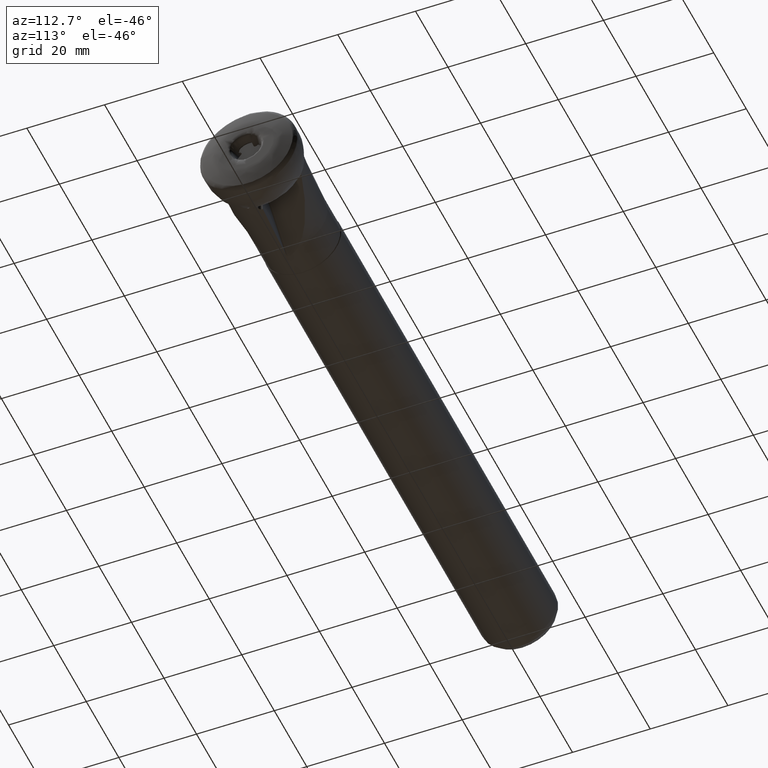
[diagram: clean part render]
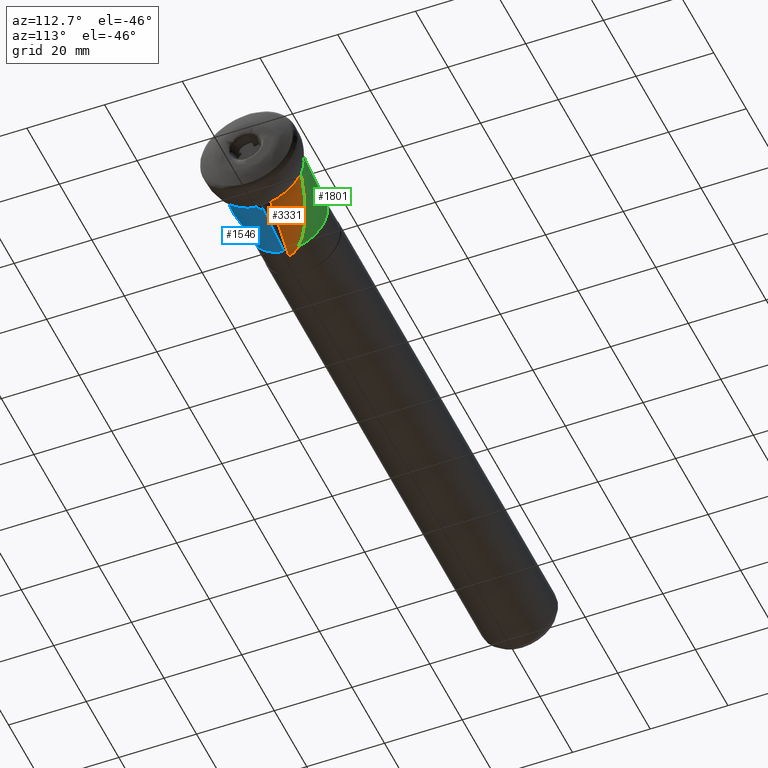
[diagram: same view with three faces highlighted in distinct colors, each labeled with its STEP entity id]
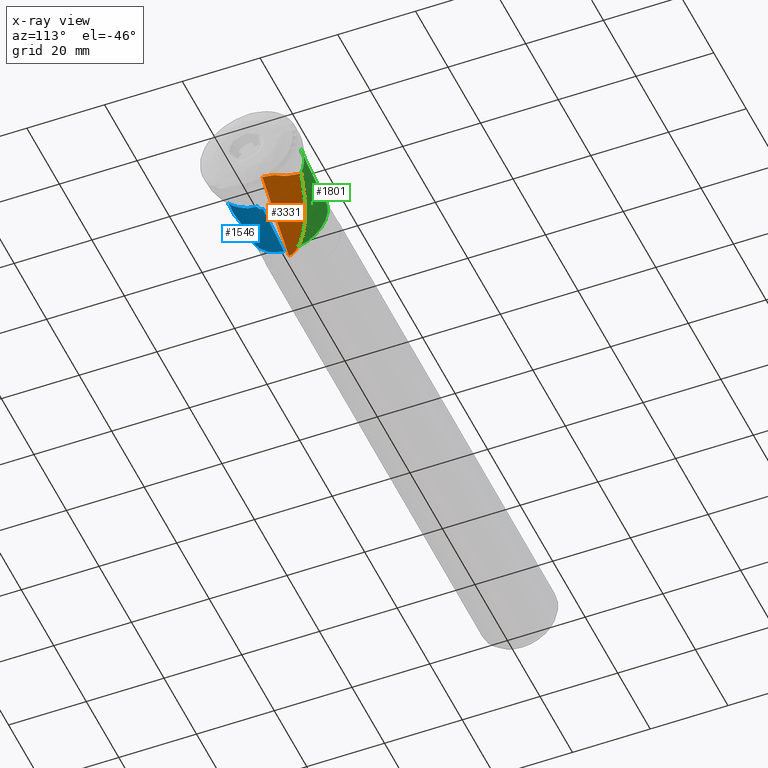
[diagram: x-ray of the same camera — body ghosted, the three highlighted faces saturated]
A machine part, auxiliary view with three faces highlighted in distinct colors.
The next image is the same camera in x-ray (body ghosted, the three faces saturated) — at least one of them is partly hidden behind the body in this view.
Their STEP definitions:

[orange] entity #3331 — the highlighted planar face has unit normal (-0.3701, 0.1482, 0.9171).
#44 = EDGE_LOOP ( 'NONE', ( #835, #937, #669, #2847, #942 ) ) ;
#162 = EDGE_CURVE ( 'NONE', #2925, #3113, #2258, .T. ) ;
#224 = CARTESIAN_POINT ( 'NONE',  ( -8.811733367181172800, 9.638300513810175800, -3.968912878629527400 ) ) ;
#241 = CARTESIAN_POINT ( 'NONE',  ( -8.546745980041865900, 5.434749106989636800, -3.182726212363853800 ) ) ;
#291 = CARTESIAN_POINT ( 'NONE',  ( -27.61564122826637700, -0.8415957483774254600, -9.864163248664985100 ) ) ;
#307 = CARTESIAN_POINT ( 'NONE',  ( -27.41783301019367500, 0.2050711477676617800, -9.953463312700556300 ) ) ;
#311 = FACE_OUTER_BOUND ( 'NONE', #44, .T. ) ;
#319 =( BOUNDED_CURVE ( )  B_SPLINE_CURVE ( 3, ( #1721, #1427, #2346, #509 ),
 .UNSPECIFIED., .F., .T. ) 
 B_SPLINE_CURVE_WITH_KNOTS ( ( 4, 4 ),
 ( 3.477441010317362300, 4.344822891366477300 ),
 .UNSPECIFIED. ) 
 CURVE ( )  GEOMETRIC_REPRESENTATION_ITEM ( )  RATIONAL_B_SPLINE_CURVE ( ( 1.000000000000000000, 0.9382806109319690200, 0.9382806109319690200, 1.000000000000000000 ) ) 
 REPRESENTATION_ITEM ( '' )  );
#408 = EDGE_CURVE ( 'NONE', #996, #2798, #1837, .T. ) ;
#436 = CARTESIAN_POINT ( 'NONE',  ( -8.008849885953161200, -0.05881239081814140800, -2.077951055465177900 ) ) ;
#509 = CARTESIAN_POINT ( 'NONE',  ( -8.740307214642635700, 10.19924558084852100, -4.030729780855216000 ) ) ;
#512 = CARTESIAN_POINT ( 'NONE',  ( -8.813978384456755000, 9.069975647979582300, -3.877984095944320600 ) ) ;
#529 = CARTESIAN_POINT ( 'NONE',  ( -8.323145797366366900, 4.630326586293118200, -2.962502534939251300 ) ) ;
#600 = AXIS2_PLACEMENT_3D ( 'NONE', #436, #3770, #3192 ) ;
#669 = ORIENTED_EDGE ( 'NONE', *, *, #692, .T. ) ;
#692 = EDGE_CURVE ( 'NONE', #2798, #3881, #2011, .T. ) ;
#814 = CARTESIAN_POINT ( 'NONE',  ( -8.817044482518666000, 8.217526212496588700, -3.741475393129663800 ) ) ;
#828 = CARTESIAN_POINT ( 'NONE',  ( -8.104467768745150700, 3.824342027265665900, -2.744012880736104200 ) ) ;
#835 = ORIENTED_EDGE ( 'NONE', *, *, #2711, .T. ) ;
#841 = CARTESIAN_POINT ( 'NONE',  ( -8.029264572803558800, 3.556606597131828800, -2.670400186422236200 ) ) ;
#937 = ORIENTED_EDGE ( 'NONE', *, *, #408, .T. ) ;
#942 = ORIENTED_EDGE ( 'NONE', *, *, #162, .T. ) ;
#996 = VERTEX_POINT ( 'NONE', #1839 ) ;
#1056 = PLANE ( 'NONE',  #600 ) ;
#1086 = DIRECTION ( 'NONE',  ( -0.9289711258367762100, -0.06495998921732398800, -0.3644075289595942700 ) ) ;
#1122 = CARTESIAN_POINT ( 'NONE',  ( -8.788676563803845100, 10.06282961495482200, -4.028206909125269200 ) ) ;
#1137 = CARTESIAN_POINT ( 'NONE',  ( -8.815157257560034800, 7.507821095023889900, -3.626033531083602000 ) ) ;
#1427 = CARTESIAN_POINT ( 'NONE',  ( -22.92936467704583600, 5.651757606189038400, -9.022177117900037400 ) ) ;
#1432 = CARTESIAN_POINT ( 'NONE',  ( -8.740307214642635700, 10.19924558084852100, -4.030729780855216000 ) ) ;
#1440 = LINE ( 'NONE', #3220, #2149 ) ;
#1445 = CARTESIAN_POINT ( 'NONE',  ( -8.809498372254063600, 7.082963518329946400, -3.555097649412223900 ) ) ;
#1721 = CARTESIAN_POINT ( 'NONE',  ( -25.80000000000000400, 2.275068941804797400, -9.635043399488926900 ) ) ;
#1726 = CARTESIAN_POINT ( 'NONE',  ( -8.809339598818191100, 9.922526779671802200, -4.013874543120897100 ) ) ;
#1738 = CARTESIAN_POINT ( 'NONE',  ( -8.770016744952450000, 6.523298656682144700, -3.448728627470818900 ) ) ;
#1837 = B_SPLINE_CURVE_WITH_KNOTS ( 'NONE', 3,
 ( #1432, #3255, #1122, #3552, #1726, #3844, #2031, #224, #2353, #512, #2655, #814, #2962, #1137, #3269, #1445, #3567, #1738, #3857, #2047, #241, #2365, #529, #2671, #828, #2976 ),
 .UNSPECIFIED., .F., .F.,
 ( 4, 2, 2, 2, 2, 2, 2, 2, 2, 2, 2, 2, 4 ),
 ( 0.0002380341816070862500, 0.0004521427388591783200, 0.0005591970174852218100, 0.0006662512961112652600, 0.001094468410615454500, 0.001950902639623837900, 0.002807336868632221400, 0.003235553983136413400, 0.003663771097640604900, 0.004520205326648990200, 0.005376639555657375900, 0.006233073784665761600, 0.007089508013674147300 ),
 .UNSPECIFIED. ) ;
#1839 = CARTESIAN_POINT ( 'NONE',  ( -8.740307214642635700, 10.19924558084852100, -4.030729780855216000 ) ) ;
#2011 = LINE ( 'NONE', #3662, #2123 ) ;
#2031 = CARTESIAN_POINT ( 'NONE',  ( -8.810308752599869600, 9.815943835221759200, -3.997043078239952400 ) ) ;
#2047 = CARTESIAN_POINT ( 'NONE',  ( -8.622455237586764900, 5.702643708550965600, -3.256568857939355700 ) ) ;
#2054 = CARTESIAN_POINT ( 'NONE',  ( -25.80000000000000400, 2.275068941804797400, -9.635043399488926900 ) ) ;
#2057 = CARTESIAN_POINT ( 'NONE',  ( -8.012170204761533300, 0.5292124833229265900, -2.174309133692659700 ) ) ;
#2123 = VECTOR ( 'NONE', #2478, 999.9999999999998900 ) ;
#2149 = VECTOR ( 'NONE', #1086, 1000.000000000000200 ) ;
#2258 =( BOUNDED_CURVE ( )  B_SPLINE_CURVE ( 3, ( #291, #307, #2431, #2054 ),
 .UNSPECIFIED., .F., .F. ) 
 B_SPLINE_CURVE_WITH_KNOTS ( ( 4, 4 ),
 ( 3.216684054430979200, 3.533673707329590300 ),
 .UNSPECIFIED. ) 
 CURVE ( )  GEOMETRIC_REPRESENTATION_ITEM ( )  RATIONAL_B_SPLINE_CURVE ( ( 1.000000000000000000, 0.9916439776872796300, 0.9916439776872796300, 1.000000000000000000 ) ) 
 REPRESENTATION_ITEM ( '' )  );
#2346 = CARTESIAN_POINT ( 'NONE',  ( -16.86874251824680100, 8.466898601579478300, -7.031190074387513500 ) ) ;
#2353 = CARTESIAN_POINT ( 'NONE',  ( -8.812431589825218100, 9.496211378927460700, -3.946234679656151400 ) ) ;
#2365 = CARTESIAN_POINT ( 'NONE',  ( -8.397478103477899600, 4.898501181884717500, -3.035834728884848400 ) ) ;
#2431 = CARTESIAN_POINT ( 'NONE',  ( -26.80751947391128100, 1.252713500705300500, -9.876446475229506900 ) ) ;
#2449 = CARTESIAN_POINT ( 'NONE',  ( -27.61564122826637700, -0.8415957483774254600, -9.864163248664985100 ) ) ;
#2478 = DIRECTION ( 'NONE',  ( 0.005572156574991135400, -0.9868229100296731500, 0.1617080558032638600 ) ) ;
#2655 = CARTESIAN_POINT ( 'NONE',  ( -8.816588011951838100, 8.785709699288375400, -3.833103133301883700 ) ) ;
#2671 = CARTESIAN_POINT ( 'NONE',  ( -8.175751805054536800, 4.093648312949667900, -2.816297754448489500 ) ) ;
#2711 = EDGE_CURVE ( 'NONE', #3113, #996, #319, .T. ) ;
#2798 = VERTEX_POINT ( 'NONE', #841 ) ;
#2847 = ORIENTED_EDGE ( 'NONE', *, *, #3768, .T. ) ;
#2925 = VERTEX_POINT ( 'NONE', #2449 ) ;
#2962 = CARTESIAN_POINT ( 'NONE',  ( -8.816068266577241600, 7.933691373385979500, -3.695216956180586100 ) ) ;
#2976 = CARTESIAN_POINT ( 'NONE',  ( -8.029264572803558800, 3.556606597131828800, -2.670400186422236200 ) ) ;
#3113 = VERTEX_POINT ( 'NONE', #3735 ) ;
#3192 = DIRECTION ( 'NONE',  ( 0.9273309213448913700, 0.0000000000000000000, 0.3742423844484142300 ) ) ;
#3220 = CARTESIAN_POINT ( 'NONE',  ( -27.68627112306956000, -0.8465346717489176100, -9.891869239432693900 ) ) ;
#3255 = CARTESIAN_POINT ( 'NONE',  ( -8.767765564405454600, 10.13305542909570900, -4.031115558581851700 ) ) ;
#3269 = CARTESIAN_POINT ( 'NONE',  ( -8.815949033665814800, 7.365630681679268900, -3.603376721982814800 ) ) ;
#3331 = ADVANCED_FACE ( 'Fl�che11', ( #311 ), #1056, .F. ) ;
#3552 = CARTESIAN_POINT ( 'NONE',  ( -8.808420984884493900, 9.957998512210233200, -4.019235645219522400 ) ) ;
#3567 = CARTESIAN_POINT ( 'NONE',  ( -8.802533576599787000, 6.942427548505498300, -3.529577864456803700 ) ) ;
#3662 = CARTESIAN_POINT ( 'NONE',  ( -8.008849885953161200, -0.05881239081814138000, -2.077951055465177400 ) ) ;
#3735 = CARTESIAN_POINT ( 'NONE',  ( -25.80000000000000400, 2.275068941804797400, -9.635043399488926900 ) ) ;
#3768 = EDGE_CURVE ( 'NONE', #3881, #2925, #1440, .T. ) ;
#3770 = DIRECTION ( 'NONE',  ( -0.3701102517259635100, 0.1481915788479658300, 0.9170919569628179800 ) ) ;
#3844 = CARTESIAN_POINT ( 'NONE',  ( -8.810000944499375200, 9.851473669820702400, -4.002660071511732200 ) ) ;
#3857 = CARTESIAN_POINT ( 'NONE',  ( -8.731957091854221500, 6.247373555817695500, -3.388782573302222100 ) ) ;
#3881 = VERTEX_POINT ( 'NONE', #2057 ) ;

[blue] entity #1546 — the highlighted conical surface has half-angle 3.578 deg.
#48 = CARTESIAN_POINT ( 'NONE',  ( -22.92936467704580400, -10.63931338463860300, -0.3834771040417172000 ) ) ;
#89 = CARTESIAN_POINT ( 'NONE',  ( -8.740307214642635700, -4.070214671424037300, -10.18355269605140000 ) ) ;
#92 = CARTESIAN_POINT ( 'NONE',  ( -8.865150662808204600, -1.121132672289459900, -10.90153055876566400 ) ) ;
#110 = EDGE_CURVE ( 'NONE', #2043, #612, #1282, .T. ) ;
#142 = VERTEX_POINT ( 'NONE', #2656 ) ;
#173 = CARTESIAN_POINT ( 'NONE',  ( -20.80416452360377400, -0.9535479512429421200, -10.17542746316643400 ) ) ;
#206 = CARTESIAN_POINT ( 'NONE',  ( -8.740307214647399900, -3.126590691940572600, -10.51169936925366800 ) ) ;
#270 = DIRECTION ( 'NONE',  ( 1.000000000000000000, 1.223799707454890500E-016, -0.0000000000000000000 ) ) ;
#364 = CARTESIAN_POINT ( 'NONE',  ( -9.844594368013705600, -0.7924712564561831000, -10.86932712811296400 ) ) ;
#396 = CARTESIAN_POINT ( 'NONE',  ( -9.114387545319235800, -1.138561012902187000, -10.88404890862997800 ) ) ;
#413 = CARTESIAN_POINT ( 'NONE',  ( -25.80000000000000100, 0.0000000000000000000, 0.0000000000000000000 ) ) ;
#602 = ORIENTED_EDGE ( 'NONE', *, *, #3121, .T. ) ;
#612 = VERTEX_POINT ( 'NONE', #2757 ) ;
#654 = CARTESIAN_POINT ( 'NONE',  ( -9.539305823287822500, -1.081162544901735900, -10.86404855966746100 ) ) ;
#660 =( BOUNDED_CURVE ( )  B_SPLINE_CURVE ( 3, ( #1674, #1973, #173, #2301 ),
 .UNSPECIFIED., .F., .T. ) 
 B_SPLINE_CURVE_WITH_KNOTS ( ( 4, 4 ),
 ( 2.685700531748277600, 2.733482246654129500 ),
 .UNSPECIFIED. ) 
 CURVE ( )  GEOMETRIC_REPRESENTATION_ITEM ( )  RATIONAL_B_SPLINE_CURVE ( ( 1.000000000000000000, 0.9998097513593796600, 0.9998097513593796600, 1.000000000000000000 ) ) 
 REPRESENTATION_ITEM ( '' )  );
#704 = DIRECTION ( 'NONE',  ( 0.0000000000000000000, 0.0000000000000000000, -1.000000000000000000 ) ) ;
#729 = CARTESIAN_POINT ( 'NONE',  ( -25.79999999999996900, -1.302890799101552400, -9.813891968307563800 ) ) ;
#734 = VERTEX_POINT ( 'NONE', #955 ) ;
#755 = CARTESIAN_POINT ( 'NONE',  ( -8.740307214642635700, -2.498948196336651500E-015, 0.0000000000000000000 ) ) ;
#778 = EDGE_CURVE ( 'NONE', #2693, #612, #3824, .T. ) ;
#851 = DIRECTION ( 'NONE',  ( 0.0000000000000000000, 0.0000000000000000000, -1.000000000000000000 ) ) ;
#881 = DIRECTION ( 'NONE',  ( -1.581790945875564300E-016, 1.000000000000000000, 0.0000000000000000000 ) ) ;
#897 = ORIENTED_EDGE ( 'NONE', *, *, #1247, .F. ) ;
#941 = CARTESIAN_POINT ( 'NONE',  ( -25.79999999999999700, -9.481726821425414900, 2.847254200780436700 ) ) ;
#954 = CARTESIAN_POINT ( 'NONE',  ( -9.969197477330617100, -0.5027476664598041800, -10.87888656146969500 ) ) ;
#955 = CARTESIAN_POINT ( 'NONE',  ( -8.740307214642610800, -1.112402767967204800, -10.91026823989949100 ) ) ;
#967 = CARTESIAN_POINT ( 'NONE',  ( -9.114387545319235800, -1.138561012902187000, -10.88404890862997800 ) ) ;
#1033 = CARTESIAN_POINT ( 'NONE',  ( -9.986957464007824500, -0.2639710184723470500, -10.88587501733269600 ) ) ;
#1071 = DIRECTION ( 'NONE',  ( -1.581790945875564300E-016, 1.000000000000000000, 0.0000000000000000000 ) ) ;
#1106 = EDGE_LOOP ( 'NONE', ( #1327, #2657, #602, #3511, #2091, #2837, #1355, #897, #3282 ) ) ;
#1126 = FACE_OUTER_BOUND ( 'NONE', #1106, .T. ) ;
#1149 = CARTESIAN_POINT ( 'NONE',  ( -8.740307214642641000, -8.590337176435289400, -6.817440882023453800 ) ) ;
#1157 = VERTEX_POINT ( 'NONE', #3429 ) ;
#1247 = EDGE_CURVE ( 'NONE', #2693, #734, #3329, .T. ) ;
#1248 = AXIS2_PLACEMENT_3D ( 'NONE', #2000, #270, #881 ) ;
#1271 = CARTESIAN_POINT ( 'NONE',  ( -9.977108450534821300, -0.3969348169359874200, -10.88225108756960300 ) ) ;
#1281 =( BOUNDED_CURVE ( )  B_SPLINE_CURVE ( 3, ( #941, #48, #3392, #1570 ),
 .UNSPECIFIED., .F., .F. ) 
 B_SPLINE_CURVE_WITH_KNOTS ( ( 4, 4 ),
 ( 3.477441010317362700, 4.344822891366477300 ),
 .UNSPECIFIED. ) 
 CURVE ( )  GEOMETRIC_REPRESENTATION_ITEM ( )  RATIONAL_B_SPLINE_CURVE ( ( 1.000000000000000000, 0.9382806109319690200, 0.9382806109319690200, 1.000000000000000000 ) ) 
 REPRESENTATION_ITEM ( '' )  );
#1282 = CIRCLE ( 'NONE', #1248, 10.96683149249277300 ) ;
#1304 = EDGE_CURVE ( 'NONE', #1157, #3666, #660, .T. ) ;
#1308 = CARTESIAN_POINT ( 'NONE',  ( -9.114387545319235800, -1.138561012902187000, -10.88404890862997800 ) ) ;
#1327 = ORIENTED_EDGE ( 'NONE', *, *, #110, .F. ) ;
#1355 = ORIENTED_EDGE ( 'NONE', *, *, #1692, .F. ) ;
#1546 = ADVANCED_FACE ( 'NONE', ( #1126 ), #1836, .T. ) ;
#1570 = CARTESIAN_POINT ( 'NONE',  ( -8.740307214642641000, -8.590337176435289400, -6.817440882023453800 ) ) ;
#1594 = CARTESIAN_POINT ( 'NONE',  ( -8.913199544597658200, -3.428929173434154700, -10.40715190376007400 ) ) ;
#1624 = CARTESIAN_POINT ( 'NONE',  ( -9.977108450534821300, -0.3969348169359874200, -10.88225108756960300 ) ) ;
#1674 = CARTESIAN_POINT ( 'NONE',  ( -9.991745607475124300, -0.1974699670405081500, -10.88678177030139300 ) ) ;
#1692 = EDGE_CURVE ( 'NONE', #734, #3054, #3071, .T. ) ;
#1712 = CARTESIAN_POINT ( 'NONE',  ( -9.977108450534821300, -0.3969348169359874200, -10.88225108756960300 ) ) ;
#1836 = CONICAL_SURFACE ( 'NONE', #3108, 11.01000000000000000, 0.06245388417783789100 ) ;
#1897 = CARTESIAN_POINT ( 'NONE',  ( -8.847885205989136600, -3.935277805782304600, -10.23024009740220900 ) ) ;
#1899 = CARTESIAN_POINT ( 'NONE',  ( -8.740307214642610800, -1.112402767967204800, -10.91026823989949100 ) ) ;
#1973 = CARTESIAN_POINT ( 'NONE',  ( -15.53374370236634200, -0.5850042256131817700, -10.53312544871989200 ) ) ;
#1979 = VERTEX_POINT ( 'NONE', #1712 ) ;
#2000 = CARTESIAN_POINT ( 'NONE',  ( -8.740307214642635700, -2.498948196336651500E-015, 0.0000000000000000000 ) ) ;
#2043 = VERTEX_POINT ( 'NONE', #1149 ) ;
#2091 = ORIENTED_EDGE ( 'NONE', *, *, #3203, .F. ) ;
#2112 = CIRCLE ( 'NONE', #2965, 9.899999999999996800 ) ;
#2131 = AXIS2_PLACEMENT_3D ( 'NONE', #755, #2898, #1071 ) ;
#2178 = CARTESIAN_POINT ( 'NONE',  ( -9.940240070436125600, -0.6049602164547354100, -10.87538402791145500 ) ) ;
#2212 = CARTESIAN_POINT ( 'NONE',  ( -8.989844118354666200, -1.129852088106039400, -10.89279078083546900 ) ) ;
#2301 = CARTESIAN_POINT ( 'NONE',  ( -25.79999999999996900, -1.302890799101552400, -9.813891968307563800 ) ) ;
#2487 = EDGE_CURVE ( 'NONE', #1979, #3054, #3116, .T. ) ;
#2497 = CARTESIAN_POINT ( 'NONE',  ( -9.778036252315137800, -0.8766060492534613100, -10.86684936453727200 ) ) ;
#2545 = DIRECTION ( 'NONE',  ( 1.000000000000000000, -0.0000000000000000000, -0.0000000000000000000 ) ) ;
#2656 = CARTESIAN_POINT ( 'NONE',  ( -25.79999999999999700, -9.481726821425414900, 2.847254200780436700 ) ) ;
#2657 = ORIENTED_EDGE ( 'NONE', *, *, #3015, .F. ) ;
#2688 = DIRECTION ( 'NONE',  ( 1.000000000000000000, -0.0000000000000000000, -0.0000000000000000000 ) ) ;
#2693 = VERTEX_POINT ( 'NONE', #206 ) ;
#2757 = CARTESIAN_POINT ( 'NONE',  ( -8.740307214642635700, -4.070214671424037300, -10.18355269605140000 ) ) ;
#2801 = CARTESIAN_POINT ( 'NONE',  ( -9.325643166846514700, -1.153333445020715600, -10.86922058977605900 ) ) ;
#2837 = ORIENTED_EDGE ( 'NONE', *, *, #2487, .T. ) ;
#2898 = DIRECTION ( 'NONE',  ( 1.000000000000000000, 1.223799707454890500E-016, -0.0000000000000000000 ) ) ;
#2965 = AXIS2_PLACEMENT_3D ( 'NONE', #413, #2545, #704 ) ;
#3015 = EDGE_CURVE ( 'NONE', #142, #2043, #1281, .T. ) ;
#3054 = VERTEX_POINT ( 'NONE', #1308 ) ;
#3071 =( BOUNDED_CURVE ( )  B_SPLINE_CURVE ( 3, ( #1899, #92, #2212, #396 ),
 .UNSPECIFIED., .F., .T. ) 
 B_SPLINE_CURVE_WITH_KNOTS ( ( 4, 4 ),
 ( 2.721170287014202500, 2.722244440893388800 ),
 .UNSPECIFIED. ) 
 CURVE ( )  GEOMETRIC_REPRESENTATION_ITEM ( )  RATIONAL_B_SPLINE_CURVE ( ( 1.000000000000000000, 0.9999999038494558100, 0.9999999038494558100, 1.000000000000000000 ) ) 
 REPRESENTATION_ITEM ( '' )  );
#3106 = CARTESIAN_POINT ( 'NONE',  ( -8.853886485836858000, -3.257913264213976800, -10.46522866364550600 ) ) ;
#3108 = AXIS2_PLACEMENT_3D ( 'NONE', #3877, #2688, #851 ) ;
#3116 = B_SPLINE_CURVE_WITH_KNOTS ( 'NONE', 3,
 ( #1271, #954, #2178, #364, #2497, #654, #2801, #967 ),
 .UNSPECIFIED., .F., .F.,
 ( 4, 2, 2, 4 ),
 ( 2.710505431213761100E-018, 0.0003139173445558436400, 0.0006278346891116845600, 0.001255669378223370200 ),
 .UNSPECIFIED. ) ;
#3121 = EDGE_CURVE ( 'NONE', #142, #3666, #2112, .T. ) ;
#3125 = CARTESIAN_POINT ( 'NONE',  ( -8.740307214647399900, -3.126590691940572600, -10.51169936925366800 ) ) ;
#3155 = CARTESIAN_POINT ( 'NONE',  ( -9.982078277733185300, -0.3304611272993766000, -10.88436474828988800 ) ) ;
#3167 = CARTESIAN_POINT ( 'NONE',  ( -9.991745607475124300, -0.1974699670405081500, -10.88678177030139300 ) ) ;
#3203 = EDGE_CURVE ( 'NONE', #1979, #1157, #3761, .T. ) ;
#3282 = ORIENTED_EDGE ( 'NONE', *, *, #778, .T. ) ;
#3329 = CIRCLE ( 'NONE', #2131, 10.96683149249277300 ) ;
#3392 = CARTESIAN_POINT ( 'NONE',  ( -16.86874251824678300, -10.32263852404627100, -3.816954243041101400 ) ) ;
#3429 = CARTESIAN_POINT ( 'NONE',  ( -9.991745607475124300, -0.1974699670405081500, -10.88678177030139300 ) ) ;
#3511 = ORIENTED_EDGE ( 'NONE', *, *, #1304, .F. ) ;
#3666 = VERTEX_POINT ( 'NONE', #729 ) ;
#3712 = CARTESIAN_POINT ( 'NONE',  ( -8.909569674017355100, -3.766931844696869400, -10.28987679569572900 ) ) ;
#3761 =( BOUNDED_CURVE ( )  B_SPLINE_CURVE ( 3, ( #1624, #3155, #1033, #3167 ),
 .UNSPECIFIED., .F., .T. ) 
 B_SPLINE_CURVE_WITH_KNOTS ( ( 4, 4 ),
 ( 2.678956776911850700, 2.697108084029442100 ),
 .UNSPECIFIED. ) 
 CURVE ( )  GEOMETRIC_REPRESENTATION_ITEM ( )  RATIONAL_B_SPLINE_CURVE ( ( 1.000000000000000000, 0.9999725443592819600, 0.9999725443592819600, 1.000000000000000000 ) ) 
 REPRESENTATION_ITEM ( '' )  );
#3824 = B_SPLINE_CURVE_WITH_KNOTS ( 'NONE', 3,
 ( #3125, #3106, #1594, #3712, #1897, #89 ),
 .UNSPECIFIED., .F., .F.,
 ( 4, 2, 4 ),
 ( 0.0007693567410232097100, 0.001304796649197654800, 0.001840236557372099900 ),
 .UNSPECIFIED. ) ;
#3877 = CARTESIAN_POINT ( 'NONE',  ( -8.050000000000041600, 0.0000000000000000000, 0.0000000000000000000 ) ) ;

[green] entity #1801 — the highlighted conical surface has half-angle 3.578 deg.
#33 = VERTEX_POINT ( 'NONE', #2947 ) ;
#61 = CARTESIAN_POINT ( 'NONE',  ( -9.114387545320124000, 9.995143357359097500, 4.456001693384377100 ) ) ;
#104 = CARTESIAN_POINT ( 'NONE',  ( -8.989844118353914800, 9.998359578367660200, 4.467914779600398800 ) ) ;
#144 =( BOUNDED_CURVE ( )  B_SPLINE_CURVE ( 3, ( #3727, #2209, #104, #2224 ),
 .UNSPECIFIED., .F., .F. ) 
 B_SPLINE_CURVE_WITH_KNOTS ( ( 4, 4 ),
 ( 2.721170287014184700, 2.722244440893392300 ),
 .UNSPECIFIED. ) 
 CURVE ( )  GEOMETRIC_REPRESENTATION_ITEM ( )  RATIONAL_B_SPLINE_CURVE ( ( 1.000000000000000000, 0.9999999038494558100, 0.9999999038494558100, 1.000000000000000000 ) ) 
 REPRESENTATION_ITEM ( '' )  );
#228 = CARTESIAN_POINT ( 'NONE',  ( -9.778036252315336800, 9.849270633414654700, 4.674261574504278400 ) ) ;
#239 =( BOUNDED_CURVE ( )  B_SPLINE_CURVE ( 3, ( #1354, #1050, #3478, #1656 ),
 .UNSPECIFIED., .F., .T. ) 
 B_SPLINE_CURVE_WITH_KNOTS ( ( 4, 4 ),
 ( 2.678956776911851200, 2.697108084029443000 ),
 .UNSPECIFIED. ) 
 CURVE ( )  GEOMETRIC_REPRESENTATION_ITEM ( )  RATIONAL_B_SPLINE_CURVE ( ( 1.000000000000000000, 0.9999725443592819600, 0.9999725443592819600, 1.000000000000000000 ) ) 
 REPRESENTATION_ITEM ( '' )  );
#294 = ORIENTED_EDGE ( 'NONE', *, *, #889, .F. ) ;
#301 = ORIENTED_EDGE ( 'NONE', *, *, #802, .F. ) ;
#319 =( BOUNDED_CURVE ( )  B_SPLINE_CURVE ( 3, ( #1721, #1427, #2346, #509 ),
 .UNSPECIFIED., .F., .T. ) 
 B_SPLINE_CURVE_WITH_KNOTS ( ( 4, 4 ),
 ( 3.477441010317362300, 4.344822891366477300 ),
 .UNSPECIFIED. ) 
 CURVE ( )  GEOMETRIC_REPRESENTATION_ITEM ( )  RATIONAL_B_SPLINE_CURVE ( ( 1.000000000000000000, 0.9382806109319690200, 0.9382806109319690200, 1.000000000000000000 ) ) 
 REPRESENTATION_ITEM ( '' )  );
#340 = DIRECTION ( 'NONE',  ( 1.000000000000000000, -0.0000000000000000000, -0.0000000000000000000 ) ) ;
#371 = CARTESIAN_POINT ( 'NONE',  ( -8.740307214642635700, -2.498948196336651500E-015, 0.0000000000000000000 ) ) ;
#431 = DIRECTION ( 'NONE',  ( 1.000000000000000000, -0.0000000000000000000, -0.0000000000000000000 ) ) ;
#433 = EDGE_CURVE ( 'NONE', #1798, #33, #2437, .T. ) ;
#444 = ORIENTED_EDGE ( 'NONE', *, *, #994, .T. ) ;
#509 = CARTESIAN_POINT ( 'NONE',  ( -8.740307214642635700, 10.19924558084852100, -4.030729780855216000 ) ) ;
#518 = CARTESIAN_POINT ( 'NONE',  ( -9.325643166846655100, 9.989687872593254500, 4.435794232465965200 ) ) ;
#544 = CARTESIAN_POINT ( 'NONE',  ( -8.913183761091087100, 10.72736882781964600, 2.233794019094516200 ) ) ;
#642 =( BOUNDED_CURVE ( )  B_SPLINE_CURVE ( 3, ( #1022, #2853, #3743, #1930 ),
 .UNSPECIFIED., .F., .T. ) 
 B_SPLINE_CURVE_WITH_KNOTS ( ( 4, 4 ),
 ( 2.685700531748276700, 2.733482246654150000 ),
 .UNSPECIFIED. ) 
 CURVE ( )  GEOMETRIC_REPRESENTATION_ITEM ( )  RATIONAL_B_SPLINE_CURVE ( ( 1.000000000000000000, 0.9998097513593793300, 0.9998097513593793300, 1.000000000000000000 ) ) 
 REPRESENTATION_ITEM ( '' )  );
#661 = DIRECTION ( 'NONE',  ( -1.581790945875564300E-016, 1.000000000000000000, 0.0000000000000000000 ) ) ;
#727 = VERTEX_POINT ( 'NONE', #61 ) ;
#737 = FACE_OUTER_BOUND ( 'NONE', #3410, .T. ) ;
#740 = ORIENTED_EDGE ( 'NONE', *, *, #433, .T. ) ;
#746 = CIRCLE ( 'NONE', #1866, 10.96683149249277300 ) ;
#802 = EDGE_CURVE ( 'NONE', #3058, #727, #144, .T. ) ;
#804 = CARTESIAN_POINT ( 'NONE',  ( -9.969197477330620700, 9.672765960351736000, 5.004051029887408600 ) ) ;
#830 = VERTEX_POINT ( 'NONE', #1922 ) ;
#848 = CARTESIAN_POINT ( 'NONE',  ( -8.847557185325099400, 10.82736915055156900, 1.706642000632151700 ) ) ;
#889 = EDGE_CURVE ( 'NONE', #1933, #830, #239, .T. ) ;
#928 = ORIENTED_EDGE ( 'NONE', *, *, #2141, .F. ) ;
#994 = EDGE_CURVE ( 'NONE', #3113, #2375, #2514, .T. ) ;
#996 = VERTEX_POINT ( 'NONE', #1839 ) ;
#1022 = CARTESIAN_POINT ( 'NONE',  ( -9.991745607475410300, 9.526964562060205900, 5.272376877210112100 ) ) ;
#1042 = DIRECTION ( 'NONE',  ( 0.0000000000000000000, 0.0000000000000000000, -1.000000000000000000 ) ) ;
#1050 = CARTESIAN_POINT ( 'NONE',  ( -9.982078277733185300, 9.591366939724522900, 5.155994642940491700 ) ) ;
#1089 = EDGE_CURVE ( 'NONE', #996, #33, #2953, .T. ) ;
#1151 = CARTESIAN_POINT ( 'NONE',  ( -8.740307214642637500, 10.66669403669666000, 2.548142718183409500 ) ) ;
#1174 = CARTESIAN_POINT ( 'NONE',  ( -8.740307214642635700, -2.498948196336651500E-015, 0.0000000000000000000 ) ) ;
#1354 = CARTESIAN_POINT ( 'NONE',  ( -9.977108450534819500, 9.622773300664079000, 5.097369908671759700 ) ) ;
#1356 = CARTESIAN_POINT ( 'NONE',  ( -8.050000000000041600, 0.0000000000000000000, 0.0000000000000000000 ) ) ;
#1427 = CARTESIAN_POINT ( 'NONE',  ( -22.92936467704583600, 5.651757606189038400, -9.022177117900037400 ) ) ;
#1480 = ORIENTED_EDGE ( 'NONE', *, *, #2711, .F. ) ;
#1488 = DIRECTION ( 'NONE',  ( -1.581790945875564300E-016, 1.000000000000000000, 0.0000000000000000000 ) ) ;
#1538 = ORIENTED_EDGE ( 'NONE', *, *, #3553, .T. ) ;
#1656 = CARTESIAN_POINT ( 'NONE',  ( -9.991745607475410300, 9.526964562060205900, 5.272376877210112100 ) ) ;
#1683 = CARTESIAN_POINT ( 'NONE',  ( -9.977108450534819500, 9.622773300664079000, 5.097369908671759700 ) ) ;
#1695 = ORIENTED_EDGE ( 'NONE', *, *, #1089, .F. ) ;
#1721 = CARTESIAN_POINT ( 'NONE',  ( -25.80000000000000400, 2.275068941804797400, -9.635043399488926900 ) ) ;
#1798 = VERTEX_POINT ( 'NONE', #2563 ) ;
#1801 = ADVANCED_FACE ( 'NONE', ( #737 ), #2670, .T. ) ;
#1822 = ORIENTED_EDGE ( 'NONE', *, *, #3200, .F. ) ;
#1839 = CARTESIAN_POINT ( 'NONE',  ( -8.740307214642635700, 10.19924558084852100, -4.030729780855216000 ) ) ;
#1866 = AXIS2_PLACEMENT_3D ( 'NONE', #1174, #3308, #1488 ) ;
#1922 = CARTESIAN_POINT ( 'NONE',  ( -9.991745607475410300, 9.526964562060205900, 5.272376877210112100 ) ) ;
#1930 = CARTESIAN_POINT ( 'NONE',  ( -25.79999999999996900, 9.150525154102101800, 3.778609453775406900 ) ) ;
#1933 = VERTEX_POINT ( 'NONE', #1683 ) ;
#2035 = CARTESIAN_POINT ( 'NONE',  ( -9.844594368013828100, 9.809349043217153500, 4.748363324196681400 ) ) ;
#2141 = EDGE_CURVE ( 'NONE', #1798, #3058, #746, .T. ) ;
#2148 = CARTESIAN_POINT ( 'NONE',  ( -25.80000000000000100, 0.0000000000000000000, 0.0000000000000000000 ) ) ;
#2209 = CARTESIAN_POINT ( 'NONE',  ( -8.865150662804749600, 10.00156874017041100, 4.479835904169069800 ) ) ;
#2224 = CARTESIAN_POINT ( 'NONE',  ( -9.114387545320124000, 9.995143357359097500, 4.456001693384377100 ) ) ;
#2316 = AXIS2_PLACEMENT_3D ( 'NONE', #371, #2503, #661 ) ;
#2346 = CARTESIAN_POINT ( 'NONE',  ( -16.86874251824680100, 8.466898601579478300, -7.031190074387513500 ) ) ;
#2356 = CARTESIAN_POINT ( 'NONE',  ( -9.539305823288250600, 9.949123313070481700, 4.495710050328849400 ) ) ;
#2375 = VERTEX_POINT ( 'NONE', #3057 ) ;
#2437 = B_SPLINE_CURVE_WITH_KNOTS ( 'NONE', 3,
 ( #1151, #3581, #544, #2684, #848, #2992 ),
 .UNSPECIFIED., .F., .F.,
 ( 4, 2, 4 ),
 ( 0.0008221725590531337800, 0.001357682506040742800, 0.001893192453028352200 ),
 .UNSPECIFIED. ) ;
#2471 = DIRECTION ( 'NONE',  ( 0.0000000000000000000, 0.0000000000000000000, -1.000000000000000000 ) ) ;
#2503 = DIRECTION ( 'NONE',  ( 1.000000000000000000, 1.223799707454890500E-016, -0.0000000000000000000 ) ) ;
#2514 = CIRCLE ( 'NONE', #3454, 9.899999999999996800 ) ;
#2563 = CARTESIAN_POINT ( 'NONE',  ( -8.740307214642637500, 10.66669403669666000, 2.548142718183409500 ) ) ;
#2640 = CARTESIAN_POINT ( 'NONE',  ( -9.977108450534819500, 9.622773300664079000, 5.097369908671759700 ) ) ;
#2661 = CARTESIAN_POINT ( 'NONE',  ( -9.114387545320124000, 9.995143357359097500, 4.456001693384377100 ) ) ;
#2670 = CONICAL_SURFACE ( 'NONE', #3529, 11.01000000000000000, 0.06245388417783789100 ) ;
#2684 = CARTESIAN_POINT ( 'NONE',  ( -8.909586692319042100, 10.79469129256000700, 1.883041849514800200 ) ) ;
#2711 = EDGE_CURVE ( 'NONE', #3113, #996, #319, .T. ) ;
#2853 = CARTESIAN_POINT ( 'NONE',  ( -15.53374370237106200, 9.414456332647983300, 4.759934203658281700 ) ) ;
#2947 = CARTESIAN_POINT ( 'NONE',  ( -8.740307214642635700, 10.85432267127002800, 1.566867043716445400 ) ) ;
#2953 = CIRCLE ( 'NONE', #2316, 10.96683149249277300 ) ;
#2992 = CARTESIAN_POINT ( 'NONE',  ( -8.740307214642635700, 10.85432267127002800, 1.566867043716445400 ) ) ;
#3057 = CARTESIAN_POINT ( 'NONE',  ( -25.79999999999996900, 9.150525154102101800, 3.778609453775406900 ) ) ;
#3058 = VERTEX_POINT ( 'NONE', #3430 ) ;
#3113 = VERTEX_POINT ( 'NONE', #3735 ) ;
#3200 = EDGE_CURVE ( 'NONE', #830, #2375, #642, .T. ) ;
#3272 = B_SPLINE_CURVE_WITH_KNOTS ( 'NONE', 3,
 ( #2640, #804, #3848, #2035, #228, #2356, #518, #2661 ),
 .UNSPECIFIED., .F., .F.,
 ( 4, 2, 2, 4 ),
 ( 7.204847710556567800E-018, 0.0003139173445556625800, 0.0006278346891113178900, 0.001255669378222634300 ),
 .UNSPECIFIED. ) ;
#3308 = DIRECTION ( 'NONE',  ( 1.000000000000000000, 1.223799707454890500E-016, -0.0000000000000000000 ) ) ;
#3410 = EDGE_LOOP ( 'NONE', ( #1695, #1480, #444, #1822, #294, #1538, #301, #928, #740 ) ) ;
#3430 = CARTESIAN_POINT ( 'NONE',  ( -8.740307214641092100, 10.00477084184166700, 4.491765063651681300 ) ) ;
#3454 = AXIS2_PLACEMENT_3D ( 'NONE', #2148, #340, #2471 ) ;
#3478 = CARTESIAN_POINT ( 'NONE',  ( -9.986957464007826200, 9.559429816668625800, 5.214331900806496600 ) ) ;
#3529 = AXIS2_PLACEMENT_3D ( 'NONE', #1356, #431, #1042 ) ;
#3553 = EDGE_CURVE ( 'NONE', #1933, #727, #3272, .T. ) ;
#3581 = CARTESIAN_POINT ( 'NONE',  ( -8.853278383119169700, 10.69197443158809500, 2.411911986298793700 ) ) ;
#3727 = CARTESIAN_POINT ( 'NONE',  ( -8.740307214641092100, 10.00477084184166700, 4.491765063651681300 ) ) ;
#3735 = CARTESIAN_POINT ( 'NONE',  ( -25.80000000000000400, 2.275068941804797400, -9.635043399488926900 ) ) ;
#3743 = CARTESIAN_POINT ( 'NONE',  ( -20.80416452361261300, 9.288952653091001800, 4.261916982080455400 ) ) ;
#3848 = CARTESIAN_POINT ( 'NONE',  ( -9.940240070436159300, 9.720838952310138800, 4.913781098227143000 ) ) ;